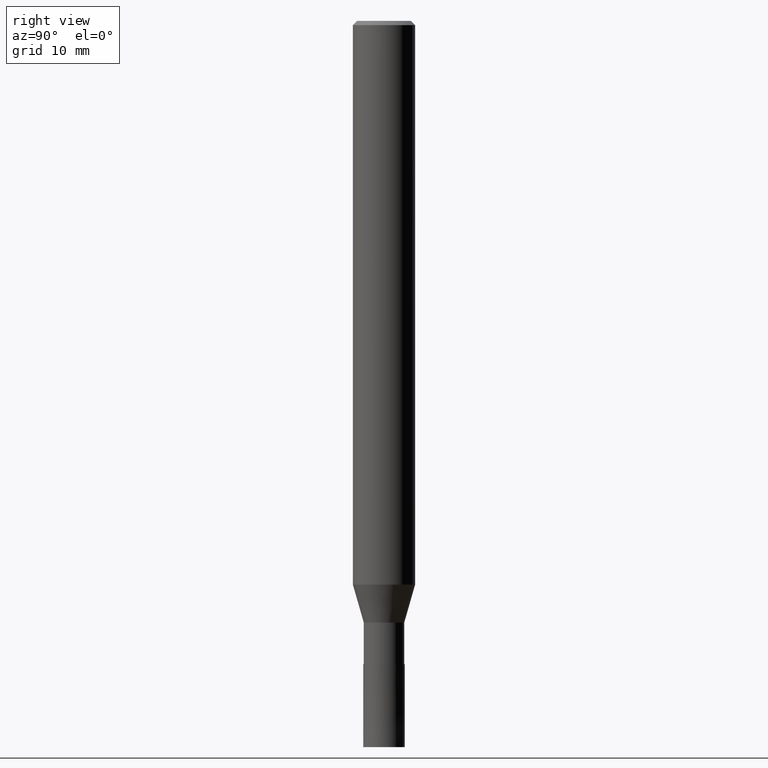
[diagram: clean part render]
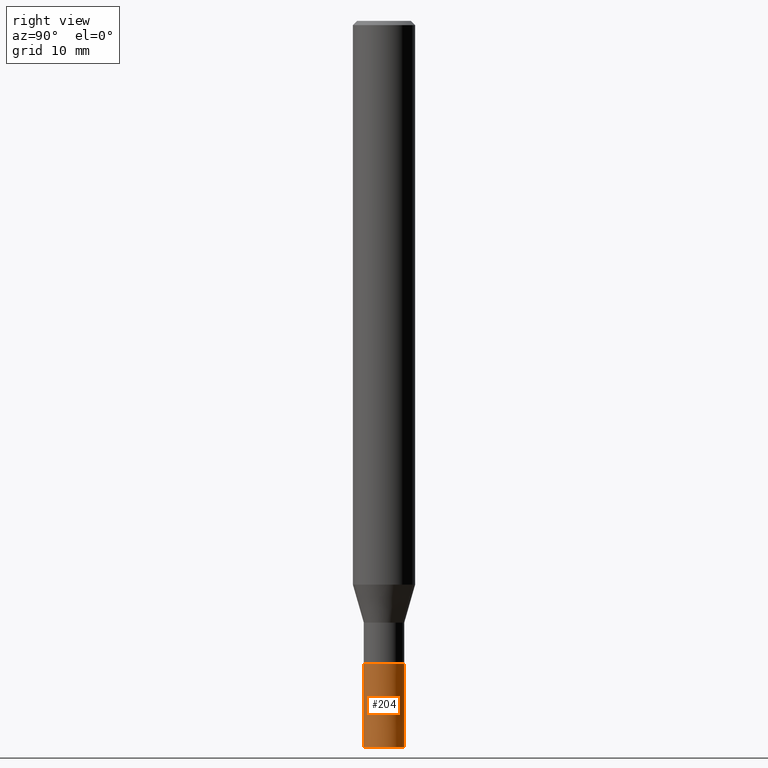
[diagram: same view with one face highlighted and labeled with its STEP entity id]
A machine part, right view. The second image highlights one B-rep face of the part: STEP entity #204.
In plain terms, the highlighted conical surface has half-angle 0.001 deg.
Its self-contained STEP definition (entity closure, byte-faithful):
#104=EDGE_CURVE('',#168,#110,#241,.T.);
#110=VERTEX_POINT('',#250);
#126=EDGE_CURVE('',#110,#182,#269,.T.);
#168=VERTEX_POINT('',#315);
#176=EDGE_CURVE('',#182,#194,#324,.T.);
#182=VERTEX_POINT('',#330);
#194=VERTEX_POINT('',#345);
#198=EDGE_CURVE('',#168,#194,#349,.T.);
#204=ADVANCED_FACE('',(#356),#357,.T.);
#241=LINE('',#391,#392);
#250=CARTESIAN_POINT('',(0.0,2.0,-70.0));
#269=CIRCLE('',#426,2.0);
#315=CARTESIAN_POINT('',(0.0,1.9999,-62.0));
#324=LINE('',#496,#497);
#330=CARTESIAN_POINT('',(2.44921270764475E-016,-2.0,-70.0));
#345=CARTESIAN_POINT('',(2.44909024700937E-016,-1.9999,-62.0));
#349=CIRCLE('',#527,1.9999);
#356=FACE_OUTER_BOUND('',#535,.T.);
#357=CONICAL_SURFACE('',#536,1.99995,1.24999999993476E-005);
#391=CARTESIAN_POINT('',(-2.44915147732706E-016,1.99995,-66.0));
#392=VECTOR('',#549,1.0);
#426=AXIS2_PLACEMENT_3D('',#594,#595,#596);
#496=CARTESIAN_POINT('',(2.44915147732706E-016,-1.99995,-66.0));
#497=VECTOR('',#651,1.0);
#527=AXIS2_PLACEMENT_3D('',#688,#689,#690);
#535=EDGE_LOOP('',(#703,#704,#705,#706));
#536=AXIS2_PLACEMENT_3D('',#707,#708,#709);
#549=DIRECTION('',(-1.53075794215821E-021,1.24999999990221E-005,-0.999999999921875));
#594=CARTESIAN_POINT('',(0.0,0.0,-70.0));
#595=DIRECTION('',(0.0,0.0,-1.0));
#596=DIRECTION('',(0.0,1.0,0.0));
#651=DIRECTION('',(-1.53075794215821E-021,1.24999999990221E-005,0.999999999921875));
#688=CARTESIAN_POINT('',(0.0,0.0,-62.0));
#689=DIRECTION('',(0.0,0.0,-1.0));
#690=DIRECTION('',(0.0,1.0,0.0));
#703=ORIENTED_EDGE('',*,*,#104,.F.);
#704=ORIENTED_EDGE('',*,*,#198,.T.);
#705=ORIENTED_EDGE('',*,*,#176,.F.);
#706=ORIENTED_EDGE('',*,*,#126,.F.);
#707=CARTESIAN_POINT('',(0.0,0.0,-66.0));
#708=DIRECTION('',(0.0,-0.0,-1.0));
#709=DIRECTION('',(0.0,1.0,0.0));